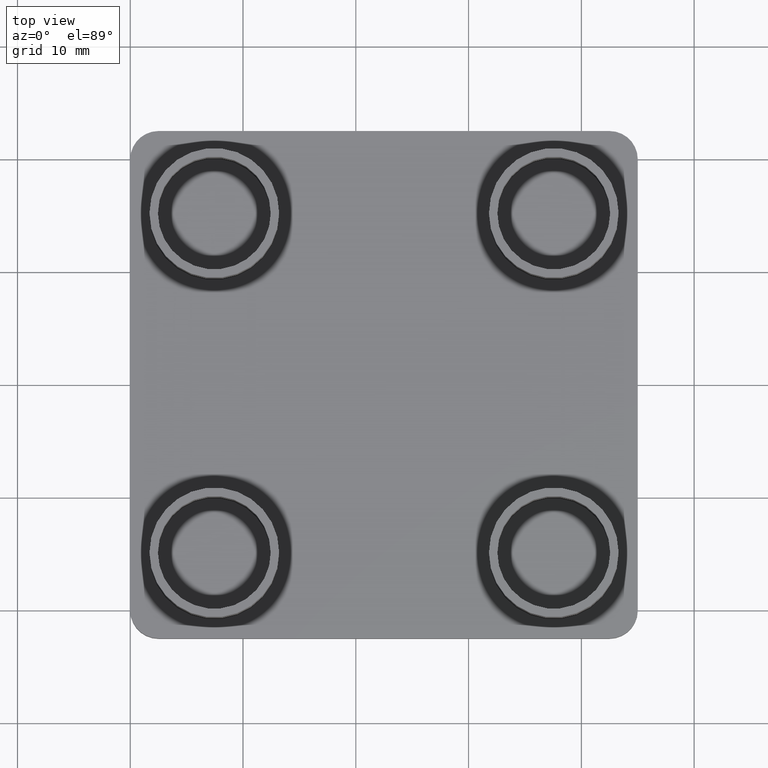
[diagram: clean part render]
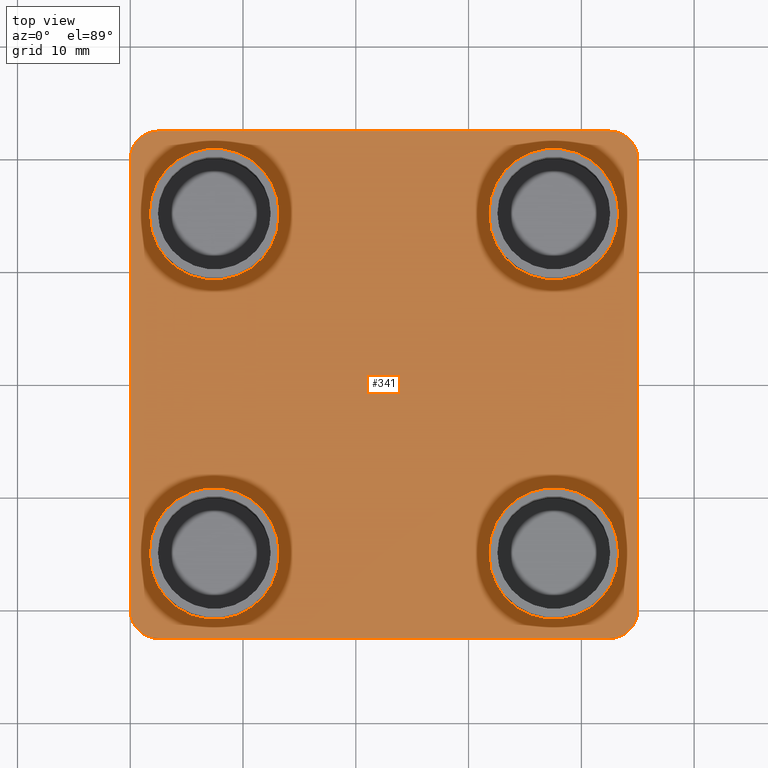
[diagram: same view with one face highlighted and labeled with its STEP entity id]
A machine part, top view. The second image highlights one B-rep face of the part: STEP entity #341.
In plain terms, the highlighted planar face has unit normal (0, 0, 1).
Its self-contained STEP definition (entity closure, byte-faithful):
#15=FACE_BOUND('',#80,.T.);
#16=FACE_BOUND('',#81,.T.);
#17=FACE_BOUND('',#82,.T.);
#18=FACE_BOUND('',#83,.T.);
#35=PLANE('',#377);
#53=FACE_OUTER_BOUND('',#79,.T.);
#79=EDGE_LOOP('',(#273,#274,#275,#276,#277,#278,#279,#280));
#80=EDGE_LOOP('',(#281));
#81=EDGE_LOOP('',(#282));
#82=EDGE_LOOP('',(#283));
#83=EDGE_LOOP('',(#284));
#114=CIRCLE('',#363,2.49999999999);
#116=CIRCLE('',#367,2.49999999999);
#118=CIRCLE('',#371,2.49999999999);
#120=CIRCLE('',#375,2.49999999999);
#121=CIRCLE('',#378,5.749999999977);
#122=CIRCLE('',#379,5.749999999977);
#123=CIRCLE('',#380,5.749999999977);
#124=CIRCLE('',#381,5.749999999977);
#141=LINE('',#544,#157);
#145=LINE('',#556,#161);
#149=LINE('',#568,#165);
#152=LINE('',#577,#168);
#157=VECTOR('',#425,39.9999539998398);
#161=VECTOR('',#437,39.9999559998401);
#165=VECTOR('',#449,39.99995599984);
#168=VECTOR('',#460,39.9999549998402);
#169=VERTEX_POINT('',#531);
#172=VERTEX_POINT('',#536);
#174=VERTEX_POINT('',#542);
#176=VERTEX_POINT('',#548);
#178=VERTEX_POINT('',#554);
#180=VERTEX_POINT('',#560);
#182=VERTEX_POINT('',#566);
#184=VERTEX_POINT('',#572);
#185=VERTEX_POINT('',#579);
#186=VERTEX_POINT('',#581);
#187=VERTEX_POINT('',#583);
#188=VERTEX_POINT('',#585);
#204=EDGE_CURVE('',#169,#172,#114,.T.);
#207=EDGE_CURVE('',#172,#174,#141,.T.);
#210=EDGE_CURVE('',#174,#176,#116,.T.);
#213=EDGE_CURVE('',#176,#178,#145,.T.);
#216=EDGE_CURVE('',#178,#180,#118,.T.);
#219=EDGE_CURVE('',#180,#182,#149,.T.);
#222=EDGE_CURVE('',#182,#184,#120,.T.);
#224=EDGE_CURVE('',#184,#169,#152,.T.);
#225=EDGE_CURVE('',#185,#185,#121,.T.);
#226=EDGE_CURVE('',#186,#186,#122,.T.);
#227=EDGE_CURVE('',#187,#187,#123,.T.);
#228=EDGE_CURVE('',#188,#188,#124,.T.);
#273=ORIENTED_EDGE('',*,*,#204,.T.);
#274=ORIENTED_EDGE('',*,*,#207,.T.);
#275=ORIENTED_EDGE('',*,*,#210,.T.);
#276=ORIENTED_EDGE('',*,*,#213,.T.);
#277=ORIENTED_EDGE('',*,*,#216,.T.);
#278=ORIENTED_EDGE('',*,*,#219,.T.);
#279=ORIENTED_EDGE('',*,*,#222,.T.);
#280=ORIENTED_EDGE('',*,*,#224,.T.);
#281=ORIENTED_EDGE('',*,*,#225,.F.);
#282=ORIENTED_EDGE('',*,*,#226,.F.);
#283=ORIENTED_EDGE('',*,*,#227,.F.);
#284=ORIENTED_EDGE('',*,*,#228,.F.);
#341=ADVANCED_FACE('',(#53,#15,#16,#17,#18),#35,.T.);
#363=AXIS2_PLACEMENT_3D('',#538,#419,#420);
#367=AXIS2_PLACEMENT_3D('',#550,#431,#432);
#371=AXIS2_PLACEMENT_3D('',#562,#443,#444);
#375=AXIS2_PLACEMENT_3D('',#574,#455,#456);
#377=AXIS2_PLACEMENT_3D('',#578,#461,#462);
#378=AXIS2_PLACEMENT_3D('',#580,#463,#464);
#379=AXIS2_PLACEMENT_3D('',#582,#465,#466);
#380=AXIS2_PLACEMENT_3D('',#584,#467,#468);
#381=AXIS2_PLACEMENT_3D('',#586,#469,#470);
#419=DIRECTION('center_axis',(0.,0.,1.));
#420=DIRECTION('ref_axis',(1.,0.,0.));
#425=DIRECTION('',(1.,-2.50000290422859E-8,0.));
#431=DIRECTION('center_axis',(0.,0.,1.));
#432=DIRECTION('ref_axis',(1.,0.,0.));
#437=DIRECTION('',(2.50000280143278E-8,1.,0.));
#443=DIRECTION('center_axis',(0.,0.,1.));
#444=DIRECTION('ref_axis',(1.,0.,0.));
#449=DIRECTION('',(-1.,0.,0.));
#455=DIRECTION('center_axis',(0.,0.,1.));
#456=DIRECTION('ref_axis',(1.,0.,0.));
#460=DIRECTION('',(2.5000028E-8,-1.,0.));
#461=DIRECTION('center_axis',(0.,0.,1.));
#462=DIRECTION('ref_axis',(1.,0.,0.));
#463=DIRECTION('center_axis',(0.,0.,1.));
#464=DIRECTION('ref_axis',(1.,0.,0.));
#465=DIRECTION('center_axis',(0.,0.,1.));
#466=DIRECTION('ref_axis',(1.,0.,0.));
#467=DIRECTION('center_axis',(0.,0.,1.));
#468=DIRECTION('ref_axis',(1.,0.,0.));
#469=DIRECTION('center_axis',(0.,0.,1.));
#470=DIRECTION('ref_axis',(1.,0.,0.));
#531=CARTESIAN_POINT('',(4.99999715E-7,-19.9999774999201,0.));
#536=CARTESIAN_POINT('',(2.50000049998971,-22.4999774999101,0.));
#538=CARTESIAN_POINT('Origin',(2.50000049998971,-19.9999774999201,0.));
#542=CARTESIAN_POINT('',(42.4999544998295,-22.49997849991,0.));
#544=CARTESIAN_POINT('',(2.50000049998971,-22.4999774999101,0.));
#548=CARTESIAN_POINT('',(44.99995449982,-19.99997849992,0.));
#550=CARTESIAN_POINT('Origin',(42.4999544998295,-19.99997849992,0.));
#554=CARTESIAN_POINT('',(44.9999554998198,19.9999774999201,0.));
#556=CARTESIAN_POINT('',(44.9999544998199,-19.99997849992,0.));
#560=CARTESIAN_POINT('',(42.4999554998299,22.4999774999101,0.));
#562=CARTESIAN_POINT('Origin',(42.4999554998299,19.9999774999201,0.));
#566=CARTESIAN_POINT('',(2.49999949998983,22.4999774999101,0.));
#568=CARTESIAN_POINT('',(42.4999554998299,22.4999774999101,0.));
#572=CARTESIAN_POINT('',(-5.00000169E-7,19.9999774999201,0.));
#574=CARTESIAN_POINT('Origin',(2.49999949998983,19.9999774999201,0.));
#577=CARTESIAN_POINT('',(-5.00000169E-7,19.9999774999201,0.));
#578=CARTESIAN_POINT('Origin',(-4.50000083393388,-26.9999788337341,0.));
#579=CARTESIAN_POINT('',(31.7999554998726,-15.05002249994,0.));
#580=CARTESIAN_POINT('Origin',(37.5499554998496,-15.05002249994,0.));
#581=CARTESIAN_POINT('',(1.69995549999275,-15.05002249994,0.));
#582=CARTESIAN_POINT('Origin',(7.44995549996974,-15.05002249994,0.));
#583=CARTESIAN_POINT('',(1.69995549999275,15.0500224999396,0.));
#584=CARTESIAN_POINT('Origin',(7.44995549996974,15.0500224999396,0.));
#585=CARTESIAN_POINT('',(31.7999554998726,15.0499774999398,0.));
#586=CARTESIAN_POINT('Origin',(37.5499554998496,15.0499774999398,0.));